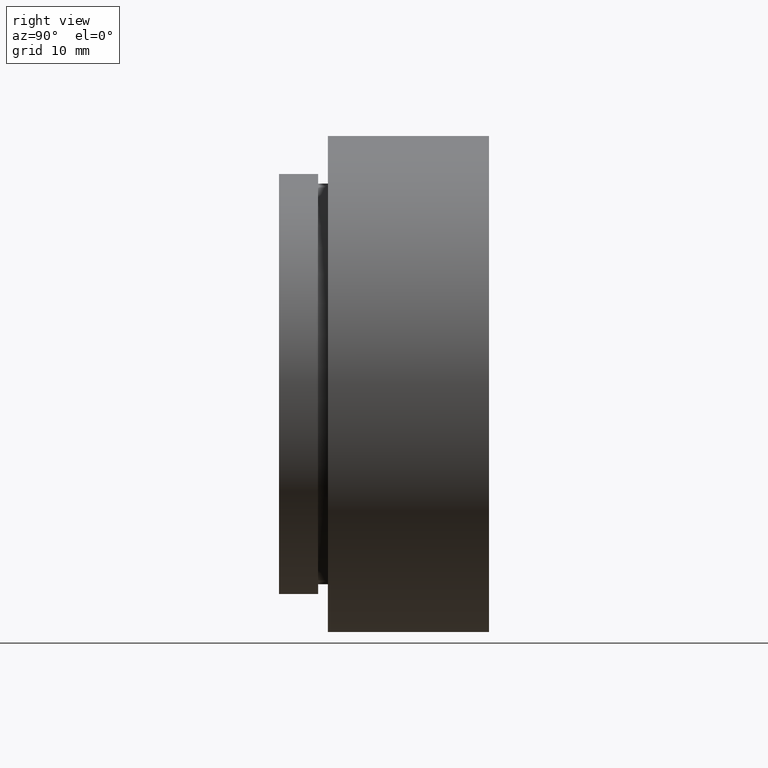
[diagram: clean part render]
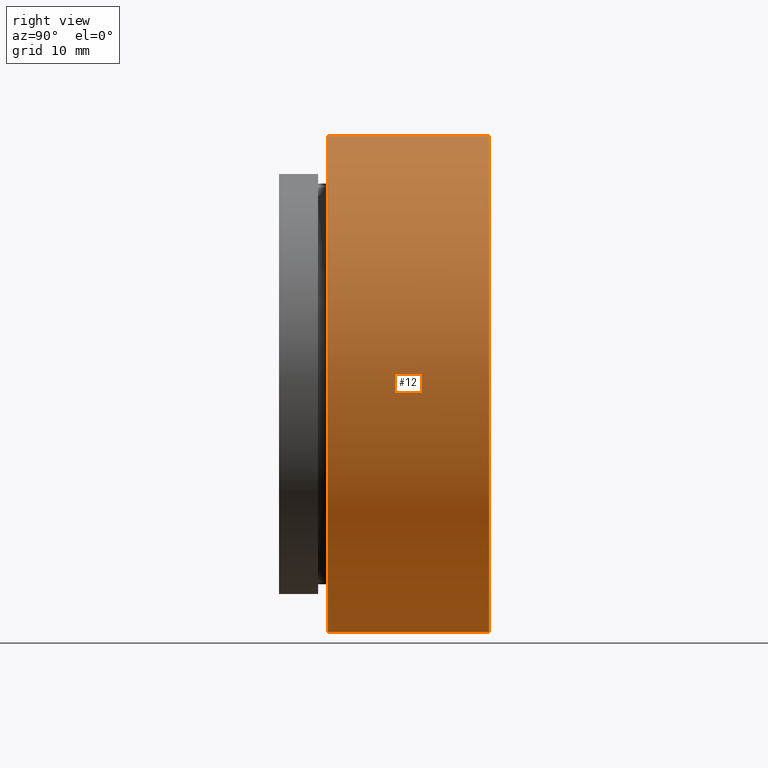
[diagram: same view with one face highlighted and labeled with its STEP entity id]
A machine part, right view. The second image highlights one B-rep face of the part: STEP entity #12.
In plain terms, the highlighted cylindrical surface (partial cylindrical patch) has radius 25.4 mm, axis along (-0, -1, -0).
Its self-contained STEP definition (entity closure, byte-faithful):
#12 = ADVANCED_FACE ( 'NONE', ( #213 ), #196, .T. ) ;
#18 = ORIENTED_EDGE ( 'NONE', *, *, #551, .F. ) ;
#32 = CARTESIAN_POINT ( 'NONE',  ( 0.0000000000000000000, 5.000000000000000000, 0.0000000000000000000 ) ) ;
#34 = CARTESIAN_POINT ( 'NONE',  ( 0.0000000000000000000, 0.0000000000000000000, 0.0000000000000000000 ) ) ;
#38 = VERTEX_POINT ( 'NONE', #362 ) ;
#44 = DIRECTION ( 'NONE',  ( 0.0000000000000000000, 0.0000000000000000000, -1.000000000000000000 ) ) ;
#74 = VERTEX_POINT ( 'NONE', #412 ) ;
#76 = CIRCLE ( 'NONE', #530, 25.39999999999999900 ) ;
#83 = EDGE_CURVE ( 'NONE', #390, #38, #460, .T. ) ;
#93 = AXIS2_PLACEMENT_3D ( 'NONE', #34, #423, #344 ) ;
#106 = VERTEX_POINT ( 'NONE', #519 ) ;
#149 = AXIS2_PLACEMENT_3D ( 'NONE', #240, #328, #44 ) ;
#160 = CIRCLE ( 'NONE', #149, 25.39999999999999900 ) ;
#196 = CYLINDRICAL_SURFACE ( 'NONE', #93, 25.39999999999999900 ) ;
#204 = DIRECTION ( 'NONE',  ( -0.0000000000000000000, -1.000000000000000000, -0.0000000000000000000 ) ) ;
#213 = FACE_OUTER_BOUND ( 'NONE', #343, .T. ) ;
#240 = CARTESIAN_POINT ( 'NONE',  ( 0.0000000000000000000, 21.50000000000000000, 0.0000000000000000000 ) ) ;
#257 = DIRECTION ( 'NONE',  ( 0.0000000000000000000, 0.0000000000000000000, -1.000000000000000000 ) ) ;
#272 = CARTESIAN_POINT ( 'NONE',  ( 3.110602869834276900E-015, 0.0000000000000000000, 25.39999999999999900 ) ) ;
#273 = ORIENTED_EDGE ( 'NONE', *, *, #83, .T. ) ;
#328 = DIRECTION ( 'NONE',  ( -0.0000000000000000000, -1.000000000000000000, -0.0000000000000000000 ) ) ;
#343 = EDGE_LOOP ( 'NONE', ( #391, #273, #18, #618 ) ) ;
#344 = DIRECTION ( 'NONE',  ( 0.0000000000000000000, 0.0000000000000000000, -1.000000000000000000 ) ) ;
#357 = VECTOR ( 'NONE', #204, 1000.000000000000000 ) ;
#362 = CARTESIAN_POINT ( 'NONE',  ( 3.110602869834276900E-015, 5.000000000000000000, 25.39999999999999900 ) ) ;
#363 = EDGE_CURVE ( 'NONE', #74, #106, #637, .T. ) ;
#390 = VERTEX_POINT ( 'NONE', #589 ) ;
#391 = ORIENTED_EDGE ( 'NONE', *, *, #431, .T. ) ;
#395 = CARTESIAN_POINT ( 'NONE',  ( 0.0000000000000000000, 0.0000000000000000000, -25.39999999999999900 ) ) ;
#412 = CARTESIAN_POINT ( 'NONE',  ( 0.0000000000000000000, 21.50000000000000000, -25.39999999999999900 ) ) ;
#423 = DIRECTION ( 'NONE',  ( -0.0000000000000000000, -1.000000000000000000, -0.0000000000000000000 ) ) ;
#431 = EDGE_CURVE ( 'NONE', #74, #390, #160, .T. ) ;
#460 = LINE ( 'NONE', #272, #550 ) ;
#519 = CARTESIAN_POINT ( 'NONE',  ( 0.0000000000000000000, 5.000000000000000000, -25.39999999999999900 ) ) ;
#530 = AXIS2_PLACEMENT_3D ( 'NONE', #32, #552, #257 ) ;
#550 = VECTOR ( 'NONE', #669, 1000.000000000000000 ) ;
#551 = EDGE_CURVE ( 'NONE', #106, #38, #76, .T. ) ;
#552 = DIRECTION ( 'NONE',  ( -0.0000000000000000000, -1.000000000000000000, -0.0000000000000000000 ) ) ;
#589 = CARTESIAN_POINT ( 'NONE',  ( 3.110602869834276900E-015, 21.50000000000000000, 25.39999999999999900 ) ) ;
#618 = ORIENTED_EDGE ( 'NONE', *, *, #363, .F. ) ;
#637 = LINE ( 'NONE', #395, #357 ) ;
#669 = DIRECTION ( 'NONE',  ( -0.0000000000000000000, -1.000000000000000000, -0.0000000000000000000 ) ) ;